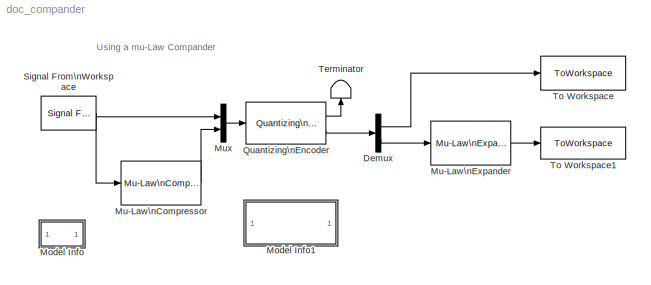
MODEL doc_compander
KIND model
CONFIG AbsTol = auto
CONFIG FixedStep = auto
CONFIG MaxStep = auto
CONFIG MinStep = auto
CONFIG RelTol = 1e-3
CONFIG Solver = ode45
CONFIG SolverMode = Auto
CONFIG StartTime = 0.0
CONFIG StopTime = 80
BLOCK [Demux] Demux
  Outputs = 2
  Ports = [1, 2]
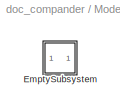
BLOCK [SubSystem] Model Info
  CopyFcn = slcm CopyBlock;
  DeleteFcn = slcm Cancel;
  InitFcn = slcm('UpdateAllCMBlocksInThisModelInit')
  LoadFcn = slcm LoadBlock;
  MaskCallbackString = ||||||||||||||||||||||||||||||
  MaskDescription = This block allows revision control information to be displayed within the model.
  MaskDisplay = text(str2num(LeftAlignmentValue), 0.5, MaskDisplayString, 'HorizontalAlignment', HorizontalTextAlignment)\n
  MaskEnableString = on,on,on,on,on,on,on,on,on,on,on,on,on,on,on,on,on,on,on,on,on,on,on,on,on,on,on,on,on,on,on
  MaskIconFrame = on
  MaskIconOpaque = on
  MaskIconRotate = none
  MaskIconUnits = normalized
  MaskPromptString = InitialSaveTempField|InitialBlockCM|BlockCM|Frame|SaveTempField|DisplayStringWithTags|MaskDisplayString|HorizontalTextAlignment|LeftAlignmentValue|SourceBlockDiagram|TagMaxNumber|CMTag1|CMTag2|CMTag3|CMTag4|CMTag5|CMTag6|CMTag7|CMTag8|CMTag9|CMTag10|CMTag11|CMTag12|CMTag13|CMTag14|CMTag15|CMTag16|CMTag17|CMTag18|CMTag19|CMTag20
  MaskSelfModifiable = on
  MaskStyleString = edit,edit,edit,edit,edit,edit,edit,edit,edit,edit,edit,edit,edit,edit,edit,edit,edit,edit,edit,edit,edit,edit,edit,edit,edit,edit,edit,edit,edit,edit,edit
  MaskToolTipString = on,on,on,on,on,on,on,on,on,on,on,on,on,on,on,on,on,on,on,on,on,on,on,on,on,on,on,on,on,on,on
  MaskTunableValueString = on,on,on,on,on,on,on,on,on,on,on,on,on,on,on,on,on,on,on,on,on,on,on,on,on,on,on,on,on,on,on
  MaskType = CMBlock
  MaskValueString = |none|none|on||Info|Info|Center|0.5|doc_compander|20||||||||||||||||||||
  MaskVarAliasString = ,,,,,,,,,,,,,,,,,,,,,,,,,,,,,,
  MaskVariables = InitialSaveTempField=&1;InitialBlockCM=&2;BlockCM=&3;Frame=&4;SaveTempField=&5;DisplayStringWithTags=&6;MaskDisplayString=&7;HorizontalTextAlignment=&8;LeftAlignmentValue=&9;SourceBlockDiagram=&10;TagMaxNumber=@11;CMTag1=&12;CMTag2=&13;CMTag3=&14;CMTag4=&15;CMTag5=&16;CMTag6=&17;CMTag7=&18;CMTag8=&19;CMTag9=&20;CMTag10=&21;CMTag11=&22;CMTag12=&23;CMTag13=&24;CMTag14=&25;CMTag15=&26;CMTag16=&27;CMT...<+45ch>
  MaskVisibilityString = off,off,off,off,off,off,off,off,off,off,off,off,off,off,off,off,off,off,off,off,off,off,off,off,off,off,off,off,off,off,off
  NameChangeFcn = slcm Rename;
  OpenFcn = commdemohelp;
  Ports = []
  PostSaveFcn = slcm('UpdateAllCMBlocksInThisModel')
  TreatAsAtomicUnit = off
BLOCK [SubSystem] Model Info/EmptySubsystem
  Ports = []
  TreatAsAtomicUnit = off
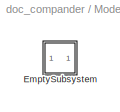
BLOCK [SubSystem] Model Info1
  CopyFcn = slcm CopyBlock;
  DeleteFcn = slcm Cancel;
  InitFcn = slcm('UpdateAllCMBlocksInThisModelInit')
  LoadFcn = slcm LoadBlock;
  MaskCallbackString = ||||||||||||||||||||||||||||||
  MaskDescription = This block allows revision control information to be displayed within the model.
  MaskDisplay = text(str2num(LeftAlignmentValue), 0.5, 'Double-click to\\npreload data', 'HorizontalAlignment', HorizontalTextAlignment)\n
  MaskEnableString = on,on,on,on,on,on,on,on,on,on,on,on,on,on,on,on,on,on,on,on,on,on,on,on,on,on,on,on,on,on,on
  MaskIconFrame = on
  MaskIconOpaque = on
  MaskIconRotate = none
  MaskIconUnits = normalized
  MaskPromptString = InitialSaveTempField|InitialBlockCM|BlockCM|Frame|SaveTempField|DisplayStringWithTags|MaskDisplayString|HorizontalTextAlignment|LeftAlignmentValue|SourceBlockDiagram|TagMaxNumber|CMTag1|CMTag2|CMTag3|CMTag4|CMTag5|CMTag6|CMTag7|CMTag8|CMTag9|CMTag10|CMTag11|CMTag12|CMTag13|CMTag14|CMTag15|CMTag16|CMTag17|CMTag18|CMTag19|CMTag20
  MaskSelfModifiable = on
  MaskStyleString = edit,edit,edit,edit,edit,edit,edit,edit,edit,edit,edit,edit,edit,edit,edit,edit,edit,edit,edit,edit,edit,edit,edit,edit,edit,edit,edit,edit,edit,edit,edit
  MaskToolTipString = on,on,on,on,on,on,on,on,on,on,on,on,on,on,on,on,on,on,on,on,on,on,on,on,on,on,on,on,on,on,on
  MaskTunableValueString = on,on,on,on,on,on,on,on,on,on,on,on,on,on,on,on,on,on,on,on,on,on,on,on,on,on,on,on,on,on,on
  MaskType = CMBlock
  MaskValueString = |none|none|on||Info|Info|Center|0.5|doc_compander|20||||||||||||||||||||
  MaskVarAliasString = ,,,,,,,,,,,,,,,,,,,,,,,,,,,,,,
  MaskVariables = InitialSaveTempField=&1;InitialBlockCM=&2;BlockCM=&3;Frame=&4;SaveTempField=&5;DisplayStringWithTags=&6;MaskDisplayString=&7;HorizontalTextAlignment=&8;LeftAlignmentValue=&9;SourceBlockDiagram=&10;TagMaxNumber=@11;CMTag1=&12;CMTag2=&13;CMTag3=&14;CMTag4=&15;CMTag5=&16;CMTag6=&17;CMTag7=&18;CMTag8=&19;CMTag9=&20;CMTag10=&21;CMTag11=&22;CMTag12=&23;CMTag13=&24;CMTag14=&25;CMTag15=&26;CMTag16=&27;CMT...<+45ch>
  MaskVisibilityString = off,off,off,off,off,off,off,off,off,off,off,off,off,off,off,off,off,off,off,off,off,off,off,off,off,off,off,off,off,off,off
  NameChangeFcn = slcm Rename;
  OpenFcn = sig = -4:.1:4; sig = exp(sig');
  Ports = []
  PostSaveFcn = slcm('UpdateAllCMBlocksInThisModel')
  TreatAsAtomicUnit = off
BLOCK [SubSystem] Model Info1/EmptySubsystem
  Ports = []
  TreatAsAtomicUnit = off
BLOCK [Reference] Mu-Law\nCompressor  REF=commsrccod2/Mu-Law\nCompressor
  Ports = [1, 1]
  SourceBlock = commsrccod2/Mu-Law\nCompressor
  SourceType = Mu-Law Compressor
  V = max(sig)
  mu = 255
BLOCK [Reference] Mu-Law\nExpander  REF=commsrccod2/Mu-Law\nExpander
  Ports = [1, 1]
  SourceBlock = commsrccod2/Mu-Law\nExpander
  SourceType = Mu-Law Expander
  V = ceil(max(sig))
  mu = 255
BLOCK [Mux] Mux
  DisplayOption = bar
  Inputs = 2
  Ports = [2, 1]
BLOCK [Reference] Quantizing\nEncoder  REF=commsrccod2/Quantizing\nEncoder
  Ports = [1, 2]
  SourceBlock = commsrccod2/Quantizing\nEncoder
  SourceType = Quantizing Encoder
  codebook = 0:ceil(max(sig))
  partition = 0:floor(max(sig))
BLOCK [Reference] Signal From\nWorkspace  REF=dspsrcs4/Signal From\nWorkspace
  OutputAfterFinalValue = Setting to zero
  Ports = [0, 1]
  SourceBlock = dspsrcs4/Signal From\nWorkspace
  SourceType = Signal From Workspace
  Ts = 1
  X = sig
  nsamps = 1
BLOCK [Terminator] Terminator
BLOCK [ToWorkspace] To Workspace
  MaxDataPoints = inf
  SampleTime = -1
  SaveFormat = Array
  VariableName = nocompander
BLOCK [ToWorkspace] To Workspace1
  MaxDataPoints = inf
  SampleTime = -1
  SaveFormat = Array
  VariableName = withcompander
ANNOTATION (root): Using a mu-Law Compander
LINE Demux:1 -> To Workspace:1
LINE Demux:2 -> Mu-Law\nExpander:1
LINE Mu-Law\nCompressor:1 -> Mux:2
LINE Mu-Law\nExpander:1 -> To Workspace1:1
LINE Mux:1 -> Quantizing\nEncoder:1
LINE Quantizing\nEncoder:1 -> Terminator:1
LINE Quantizing\nEncoder:2 -> Demux:1
NET Signal From\nWorkspace:1 -> Mu-Law\nCompressor:1, Mux:1
note: NET lines group one-source signal fan-out (src -> all destinations, sorted); 1:1 wires keep LINE
